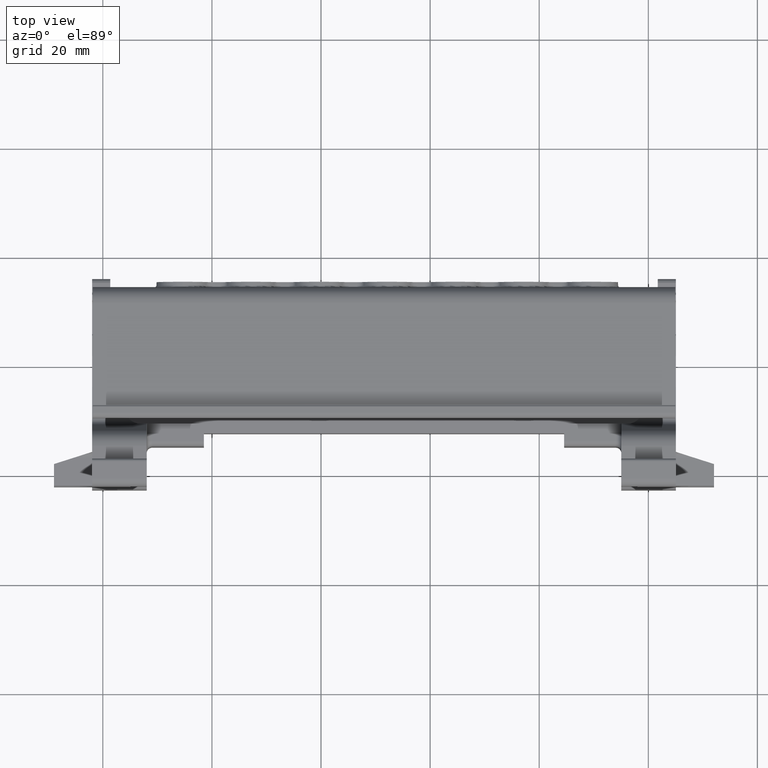
[diagram: clean part render]
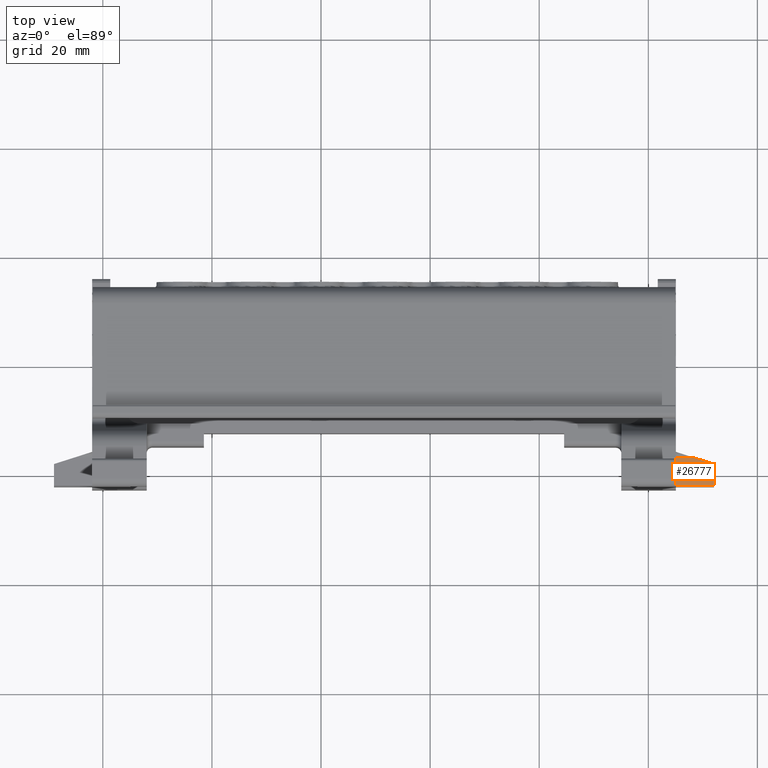
[diagram: same view with one face highlighted and labeled with its STEP entity id]
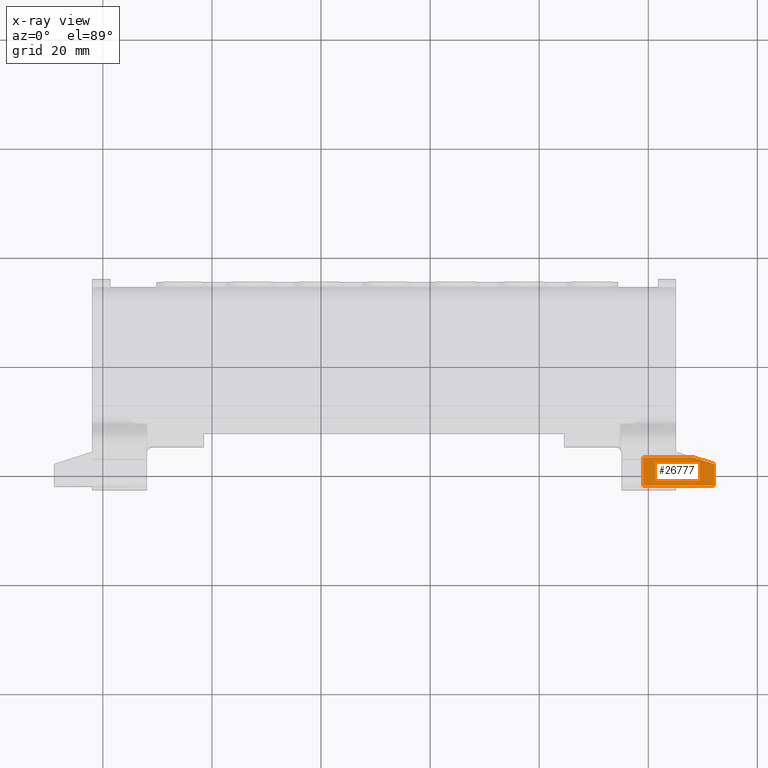
[diagram: x-ray of the same camera — body ghosted, the highlighted face saturated]
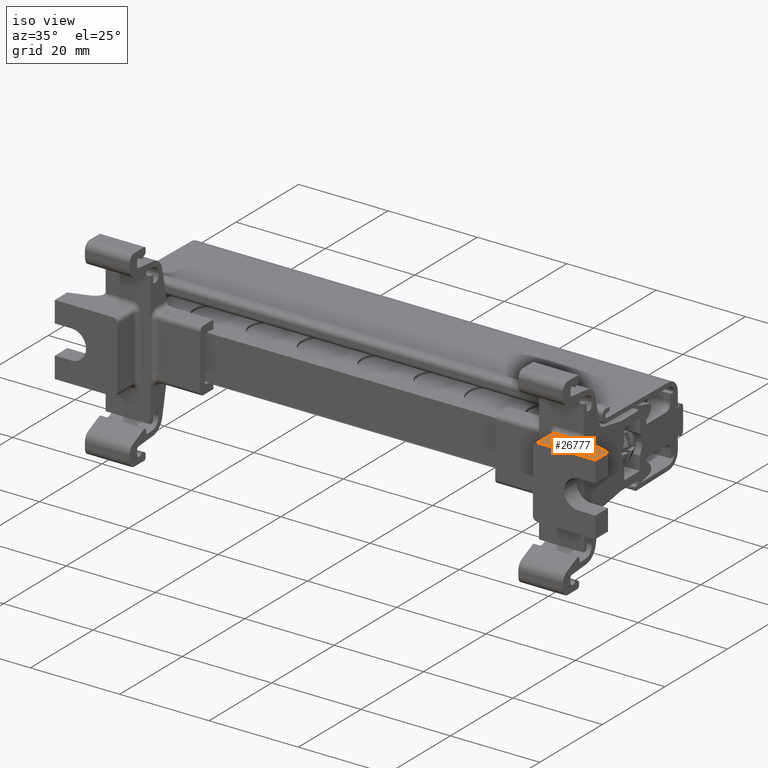
[diagram: same view with one face highlighted and labeled with its STEP entity id]
A machine part, top view. The second image highlights one B-rep face of the part: STEP entity #26777.
The next image is the same camera in x-ray: the body ghosted, the highlighted face saturated — about 0% of this face is hidden behind the body in this view.
A second angle (iso view) of the same face is appended — the face is thin or edge-on in the first view.
In plain terms, the highlighted planar face has unit normal (-0, 0, 1).
Its self-contained STEP definition (entity closure, byte-faithful):
#1509 = LINE ( 'NONE', #1543, #24679 ) ;
#1528 = DIRECTION ( 'NONE',  ( -0.9528971211542492900, 0.3032937132483030700, -6.691613705925408000E-015 ) ) ;
#1543 = CARTESIAN_POINT ( 'NONE',  ( 52.04730230417582200, 41.74082521647719100, 46.07664888101862700 ) ) ;
#3143 = EDGE_CURVE ( 'NONE', #25194, #4823, #15370, .T. ) ;
#3147 = EDGE_CURVE ( 'NONE', #4847, #4831, #14901, .T. ) ;
#3155 = EDGE_CURVE ( 'NONE', #4831, #4823, #14894, .T. ) ;
#3654 = CARTESIAN_POINT ( 'NONE',  ( 52.04730230417582200, 41.74082521647719100, 46.07664888101842100 ) ) ;
#3676 = CARTESIAN_POINT ( 'NONE',  ( 48.18913175704723500, 42.96882648293760800, 46.07664888101859900 ) ) ;
#4823 = VERTEX_POINT ( 'NONE', #15125 ) ;
#4831 = VERTEX_POINT ( 'NONE', #15185 ) ;
#4847 = VERTEX_POINT ( 'NONE', #15139 ) ;
#5720 = DIRECTION ( 'NONE',  ( 1.000000000000000000, -1.579514997436684100E-014, 3.511194208363125300E-015 ) ) ;
#5730 = CARTESIAN_POINT ( 'NONE',  ( 18.55488087146765600, 41.74082521647746800, 46.07664888101829300 ) ) ;
#5733 = DIRECTION ( 'NONE',  ( -3.511194208363125300E-015, 2.436380408784620400E-029, 1.000000000000000000 ) ) ;
#5752 = PLANE ( 'NONE',  #15904 ) ;
#5758 = FACE_OUTER_BOUND ( 'NONE', #7844, .T. ) ;
#6312 = DIRECTION ( 'NONE',  ( -1.000000000000000000, 7.897574987183420400E-015, -3.511194208363125300E-015 ) ) ;
#6341 = CARTESIAN_POINT ( 'NONE',  ( 37.04730230417583700, 42.96882648293767900, 46.07664888101842100 ) ) ;
#6352 = LINE ( 'NONE', #6341, #16307 ) ;
#6518 = EDGE_CURVE ( 'NONE', #25194, #25202, #1509, .T. ) ;
#7844 = EDGE_LOOP ( 'NONE', ( #19909, #19867, #19860, #19803, #19813 ) ) ;
#14870 = DIRECTION ( 'NONE',  ( 1.000000000000000000, -7.897574987183420400E-015, 3.511194208363125300E-015 ) ) ;
#14885 = CARTESIAN_POINT ( 'NONE',  ( 39.04730230417574400, 37.74082521647734700, 46.07664888101832900 ) ) ;
#14889 = CARTESIAN_POINT ( 'NONE',  ( 18.55488087146765300, 37.74082521647761700, 46.07664888101829300 ) ) ;
#14894 = LINE ( 'NONE', #14889, #24862 ) ;
#14899 = DIRECTION ( 'NONE',  ( -1.232570302241323000E-014, -1.000000000000000000, -1.891413297845499200E-029 ) ) ;
#14901 = LINE ( 'NONE', #14885, #24882 ) ;
#15125 = CARTESIAN_POINT ( 'NONE',  ( 52.04730230417575100, 37.74082521647739700, 46.07664888101842100 ) ) ;
#15139 = CARTESIAN_POINT ( 'NONE',  ( 39.04730230417583000, 42.96882648293765100, 46.07664888101832900 ) ) ;
#15185 = CARTESIAN_POINT ( 'NONE',  ( 39.04730230417574400, 37.74082521647750400, 46.07664888101832900 ) ) ;
#15370 = LINE ( 'NONE', #15379, #24838 ) ;
#15379 = CARTESIAN_POINT ( 'NONE',  ( 52.04730230417575100, 37.74082521647734000, 46.07664888101842100 ) ) ;
#15384 = DIRECTION ( 'NONE',  ( -8.856256070459341100E-015, -1.000000000000000000, -6.732230934531396700E-030 ) ) ;
#15904 = AXIS2_PLACEMENT_3D ( 'NONE', #5730, #5733, #5720 ) ;
#16307 = VECTOR ( 'NONE', #6312, 1000.000000000000000 ) ;
#19803 = ORIENTED_EDGE ( 'NONE', *, *, #3155, .T. ) ;
#19813 = ORIENTED_EDGE ( 'NONE', *, *, #3143, .F. ) ;
#19860 = ORIENTED_EDGE ( 'NONE', *, *, #3147, .T. ) ;
#19867 = ORIENTED_EDGE ( 'NONE', *, *, #26944, .T. ) ;
#19909 = ORIENTED_EDGE ( 'NONE', *, *, #6518, .T. ) ;
#24679 = VECTOR ( 'NONE', #1528, 1000.000000000000200 ) ;
#24838 = VECTOR ( 'NONE', #15384, 1000.000000000000000 ) ;
#24862 = VECTOR ( 'NONE', #14870, 1000.000000000000000 ) ;
#24882 = VECTOR ( 'NONE', #14899, 1000.000000000000000 ) ;
#25194 = VERTEX_POINT ( 'NONE', #3654 ) ;
#25202 = VERTEX_POINT ( 'NONE', #3676 ) ;
#26777 = ADVANCED_FACE ( 'NONE', ( #5758 ), #5752, .T. ) ;
#26944 = EDGE_CURVE ( 'NONE', #25202, #4847, #6352, .T. ) ;